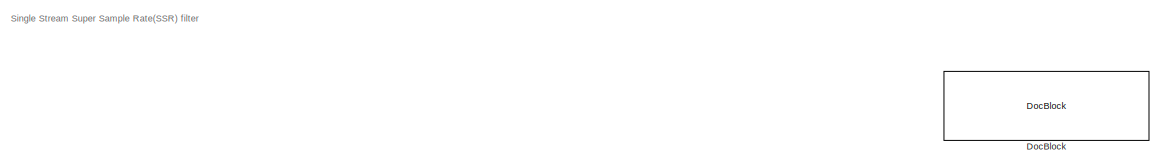
[diagram: root canvas - part 1/4, top center region]
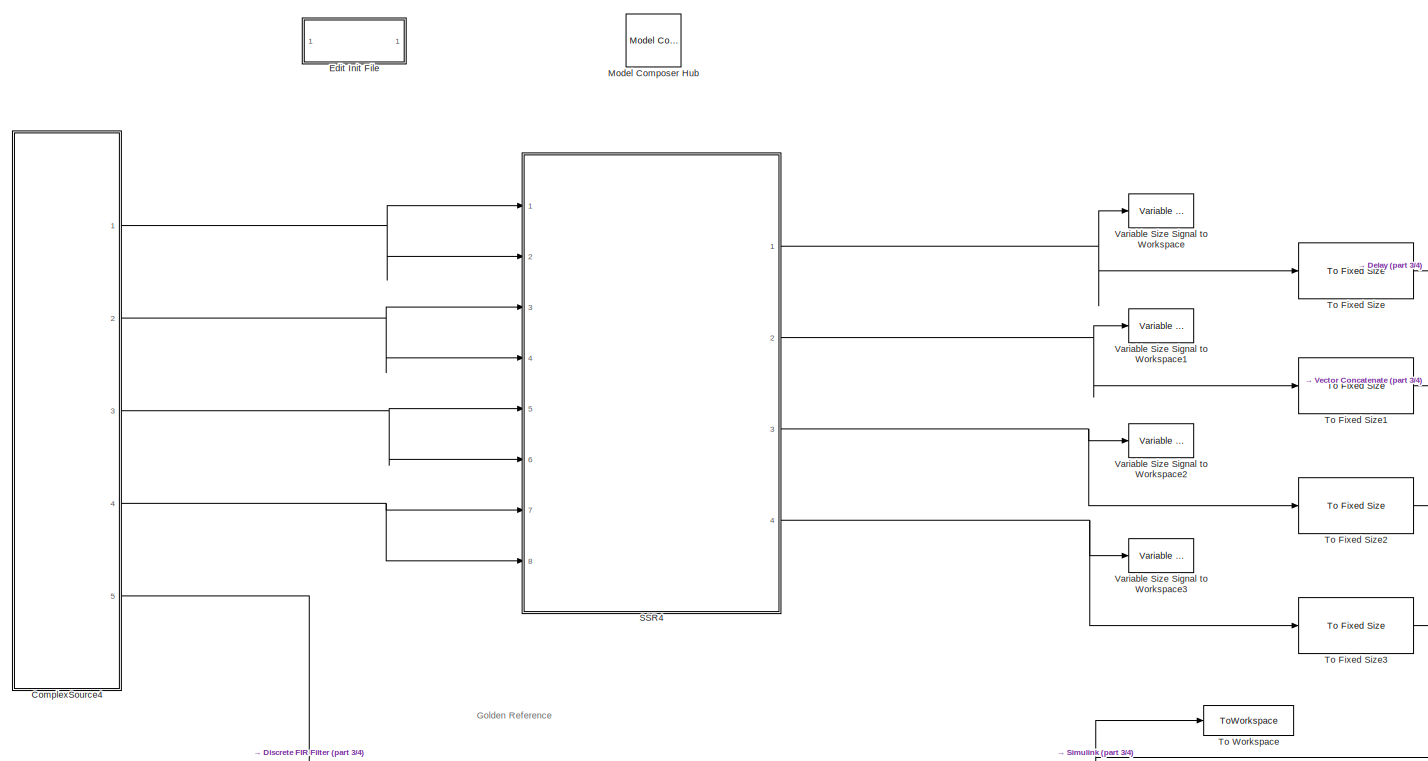
[diagram: root canvas - part 2/4, left side, full height]
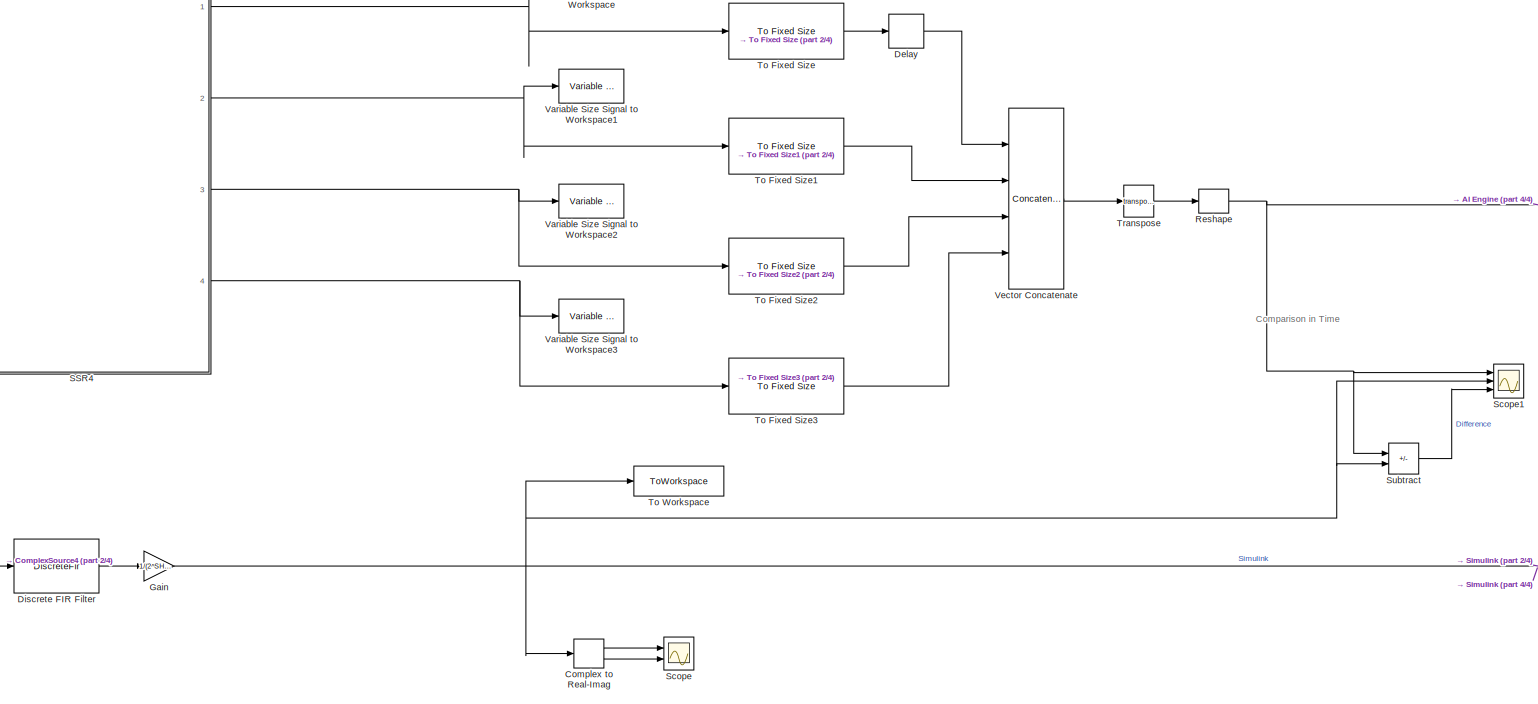
[diagram: root canvas - part 3/4, central region]
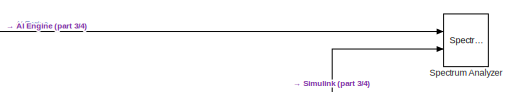
[diagram: root canvas - part 4/4, middle right region]
MODEL slx_d6a7dd6f2896
KIND model
CONFIG AbsTol = auto
CONFIG EnableMultiTasking = off
CONFIG FixedStep = auto
CONFIG InitFcn = xmcCheckSlxPath(bdroot)\nSSR4_init;\n\n
CONFIG MaxStep = auto
CONFIG MinStep = auto
CONFIG PreLoadFcn = xmcCheckSlxPath(bdroot)\nSSR4_init\n
CONFIG RelTol = 1e-3
CONFIG SampleTimeConstraint = Unconstrained
CONFIG Solver = VariableStepAuto
CONFIG SolverName = VariableStepAuto
CONFIG StartTime = 0.0
CONFIG StopTime = 4096
BLOCK [ComplexToRealImag] Complex to Real-Imag
  Ports = [1, 2]
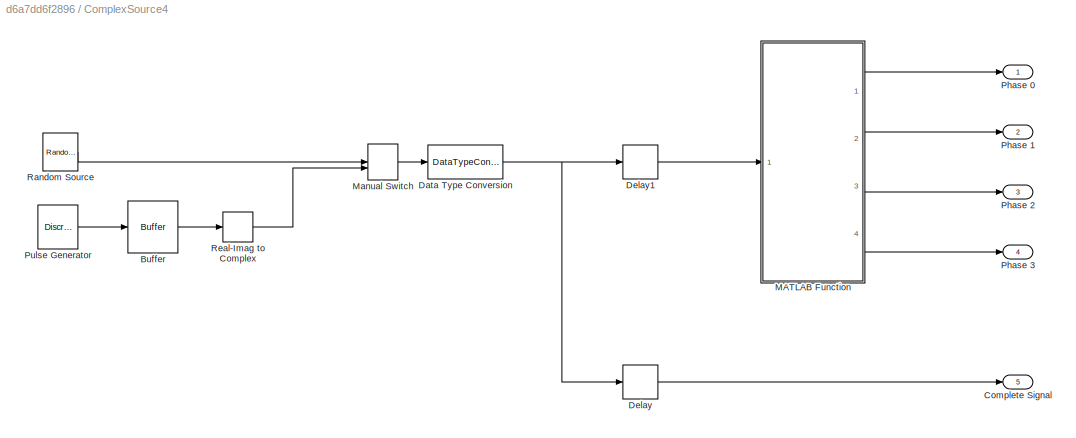
BLOCK [SubSystem] ComplexSource4
  Ports = [0, 5]
  RequestExecContextInheritance = off
BLOCK [Buffer] ComplexSource4/Buffer
  N = N*4
  OutputFrames = off
BLOCK [Outport] ComplexSource4/Complete Signal
  Port = 5
BLOCK [DataTypeConversion] ComplexSource4/Data Type Conversion
  OutDataTypeStr = int16
  RndMeth = Floor
  SaturateOnIntegerOverflow = off
BLOCK [Delay] ComplexSource4/Delay
  DelayLength = 13+N*4
  InputPortMap = u0
  InputProcessing = Columns as channels (frame based)
  Ports = [1, 1]
BLOCK [Delay] ComplexSource4/Delay1
  DelayLength = N*4
  InputPortMap = u0
  InputProcessing = Columns as channels (frame based)
  Ports = [1, 1]
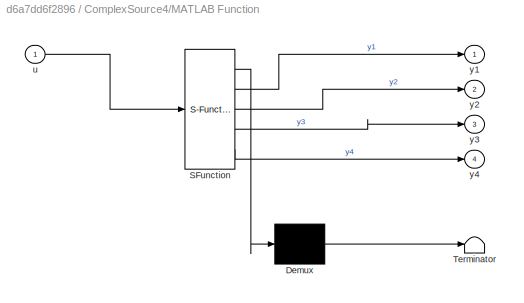
BLOCK [SubSystem] ComplexSource4/MATLAB Function
  ErrorFcn = Stateflow.Translate.translate
  PermitHierarchicalResolution = ExplicitOnly
  Ports = [1, 4]
  RequestExecContextInheritance = off
  SFBlockType = MATLAB Function
  TreatAsAtomicUnit = on
BLOCK [Demux] ComplexSource4/MATLAB Function/ Demux 
  Outputs = 1
  Ports = [1, 1]
BLOCK [S-Function] ComplexSource4/MATLAB Function/ SFunction 
  EnableBusSupport = on
  FunctionName = sf_sfun
  PortCounts = [1 5]
  Ports = [1, 5]
  SFcnIsStateOwnerBlock = off
  SFunctionDeploymentMode = off
  Tag = Stateflow S-Function 2
BLOCK [Terminator] ComplexSource4/MATLAB Function/ Terminator 
BLOCK [Inport] ComplexSource4/MATLAB Function/u
BLOCK [Outport] ComplexSource4/MATLAB Function/y1
BLOCK [Outport] ComplexSource4/MATLAB Function/y2
  Port = 2
BLOCK [Outport] ComplexSource4/MATLAB Function/y3
  Port = 3
BLOCK [Outport] ComplexSource4/MATLAB Function/y4
  Port = 4
BLOCK [ManualSwitch] ComplexSource4/Manual Switch
BLOCK [Outport] ComplexSource4/Phase 0
BLOCK [Outport] ComplexSource4/Phase 1
  Port = 2
BLOCK [Outport] ComplexSource4/Phase 2
  Port = 3
BLOCK [Outport] ComplexSource4/Phase 3
  Port = 4
BLOCK [DiscretePulseGenerator] ComplexSource4/Pulse Generator
  Amplitude = 20000
  Period = 32 + 40*5
  PhaseDelay = 32
  Ports = [0, 1]
  SampleTime = 1/8
BLOCK [Reference] ComplexSource4/Random Source  REF=dspsrcs4/Random
Source
  Ports = [0, 1]
  SourceBlock = dspsrcs4/Random\nSource
  SourceProductBaseCode = DS
  SourceType = Random Source
  UserDataPersistent = on
BLOCK [RealImagToComplex] ComplexSource4/Real-Imag to Complex
  Input = Real
  Ports = [1, 1]
BLOCK [Delay] Delay
  DelayLength = 4
  InputPortMap = u0
  InputProcessing = Columns as channels (frame based)
  Ports = [1, 1]
BLOCK [DiscreteFir] Discrete FIR Filter
  Coefficients = Taps
  InputPortMap = u0
  InputProcessing = Columns as channels (frame based)
  OutputPortMap = o0
  Ports = [1, 1]
BLOCK [Reference] DocBlock  REF=simulink/Model-Wide
Utilities/DocBlock
  Ports = []
  SourceBlock = simulink/Model-Wide\nUtilities/DocBlock
  SourceProductBaseCode = SL
  SourceType = DocBlock
  UserDataPersistent = on
BLOCK [SubSystem] Edit Init File
  OpenFcn = edit('SSR4_init.m');
  Ports = []
  RequestExecContextInheritance = off
BLOCK [Gain] Gain
  Gain = 1/(2^SHIFT_ACC)
BLOCK [Reference] Model Composer Hub  REF=ModelComposer/Model Composer Hub
  Ports = []
  SourceBlock = ModelComposer/Model Composer Hub
  SourceType = Implementation
BLOCK [Reshape] Reshape
  Ports = [1, 1]
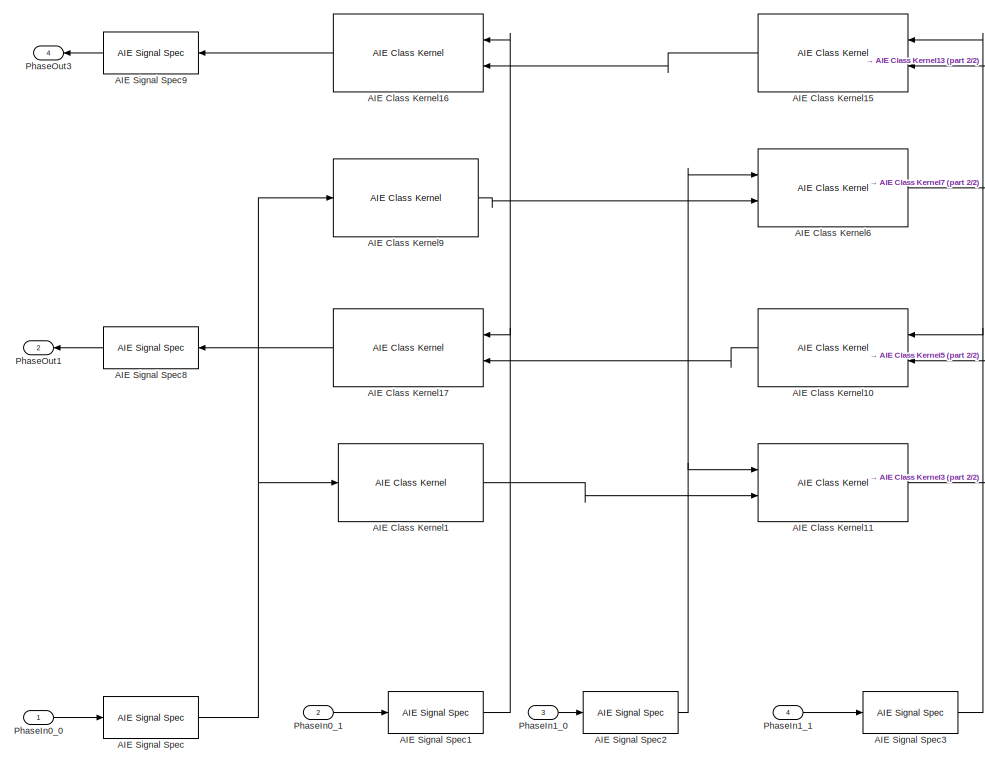
[diagram: SSR4 - part 1/2, left side, full height]
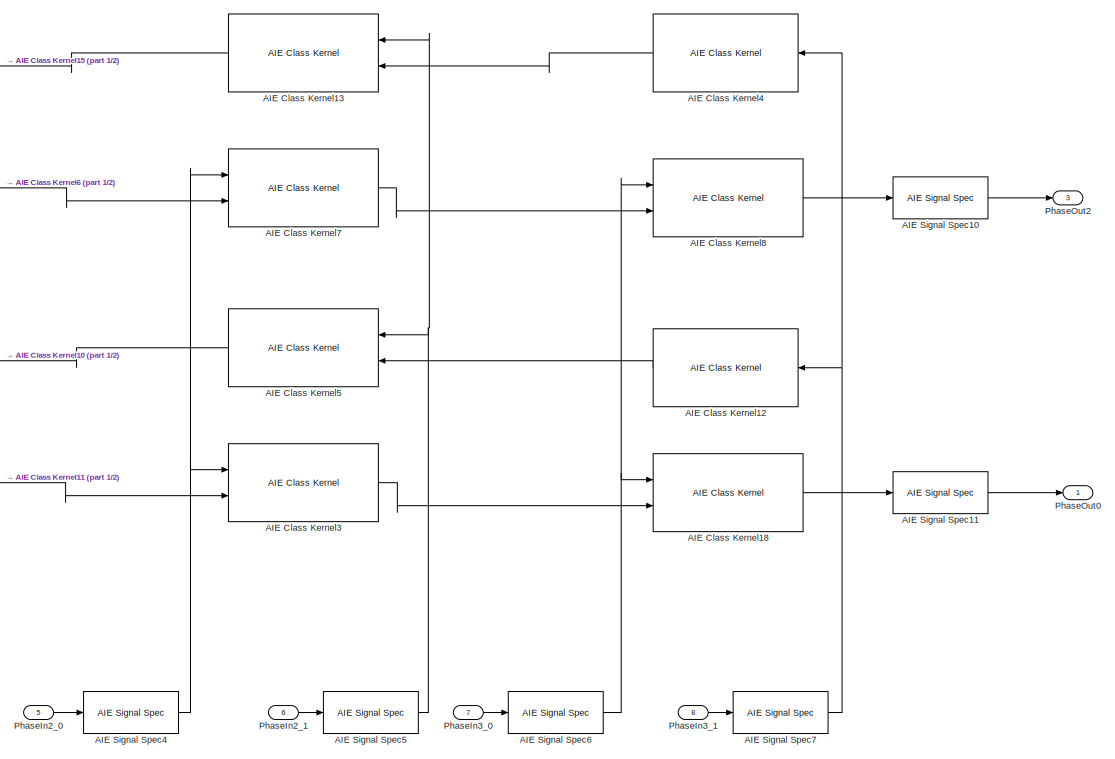
[diagram: SSR4 - part 2/2, right side, full height]
BLOCK [SubSystem] SSR4
  Ports = [8, 4]
  RequestExecContextInheritance = off
BLOCK [Reference] SSR4/AIE Class Kernel1  REF=ModelComposer/AIE Class Kernel
  Ports = [1, 1]
  SourceBlock = ModelComposer/AIE Class Kernel
  SourceType = AIE Class Kernel Function
BLOCK [Reference] SSR4/AIE Class Kernel10  REF=ModelComposer/AIE Class Kernel
  NameLocation = top
  Ports = [2, 1]
  SourceBlock = ModelComposer/AIE Class Kernel
  SourceType = AIE Class Kernel Function
BLOCK [Reference] SSR4/AIE Class Kernel11  REF=ModelComposer/AIE Class Kernel
  Ports = [2, 1]
  SourceBlock = ModelComposer/AIE Class Kernel
  SourceType = AIE Class Kernel Function
BLOCK [Reference] SSR4/AIE Class Kernel12  REF=ModelComposer/AIE Class Kernel
  NameLocation = top
  Ports = [1, 1]
  SourceBlock = ModelComposer/AIE Class Kernel
  SourceType = AIE Class Kernel Function
BLOCK [Reference] SSR4/AIE Class Kernel13  REF=ModelComposer/AIE Class Kernel
  NameLocation = top
  Ports = [2, 1]
  SourceBlock = ModelComposer/AIE Class Kernel
  SourceType = AIE Class Kernel Function
BLOCK [Reference] SSR4/AIE Class Kernel15  REF=ModelComposer/AIE Class Kernel
  NameLocation = top
  Ports = [2, 1]
  SourceBlock = ModelComposer/AIE Class Kernel
  SourceType = AIE Class Kernel Function
BLOCK [Reference] SSR4/AIE Class Kernel16  REF=ModelComposer/AIE Class Kernel
  NameLocation = top
  Ports = [2, 1]
  SourceBlock = ModelComposer/AIE Class Kernel
  SourceType = AIE Class Kernel Function
BLOCK [Reference] SSR4/AIE Class Kernel17  REF=ModelComposer/AIE Class Kernel
  NameLocation = top
  Ports = [2, 1]
  SourceBlock = ModelComposer/AIE Class Kernel
  SourceType = AIE Class Kernel Function
BLOCK [Reference] SSR4/AIE Class Kernel18  REF=ModelComposer/AIE Class Kernel
  Ports = [2, 1]
  SourceBlock = ModelComposer/AIE Class Kernel
  SourceType = AIE Class Kernel Function
BLOCK [Reference] SSR4/AIE Class Kernel3  REF=ModelComposer/AIE Class Kernel
  Ports = [2, 1]
  SourceBlock = ModelComposer/AIE Class Kernel
  SourceType = AIE Class Kernel Function
BLOCK [Reference] SSR4/AIE Class Kernel4  REF=ModelComposer/AIE Class Kernel
  NameLocation = top
  Ports = [1, 1]
  SourceBlock = ModelComposer/AIE Class Kernel
  SourceType = AIE Class Kernel Function
BLOCK [Reference] SSR4/AIE Class Kernel5  REF=ModelComposer/AIE Class Kernel
  NameLocation = top
  Ports = [2, 1]
  SourceBlock = ModelComposer/AIE Class Kernel
  SourceType = AIE Class Kernel Function
BLOCK [Reference] SSR4/AIE Class Kernel6  REF=ModelComposer/AIE Class Kernel
  Ports = [2, 1]
  SourceBlock = ModelComposer/AIE Class Kernel
  SourceType = AIE Class Kernel Function
BLOCK [Reference] SSR4/AIE Class Kernel7  REF=ModelComposer/AIE Class Kernel
  Ports = [2, 1]
  SourceBlock = ModelComposer/AIE Class Kernel
  SourceType = AIE Class Kernel Function
BLOCK [Reference] SSR4/AIE Class Kernel8  REF=ModelComposer/AIE Class Kernel
  Ports = [2, 1]
  SourceBlock = ModelComposer/AIE Class Kernel
  SourceType = AIE Class Kernel Function
BLOCK [Reference] SSR4/AIE Class Kernel9  REF=ModelComposer/AIE Class Kernel
  Ports = [1, 1]
  SourceBlock = ModelComposer/AIE Class Kernel
  SourceType = AIE Class Kernel Function
BLOCK [Reference] SSR4/AIE Signal Spec  REF=ModelComposer/AIE Signal Spec
  Ports = [1, 1]
  SourceBlock = ModelComposer/AIE Signal Spec
  SourceType = AIE Signal Spec
BLOCK [Reference] SSR4/AIE Signal Spec1  REF=ModelComposer/AIE Signal Spec
  Ports = [1, 1]
  SourceBlock = ModelComposer/AIE Signal Spec
  SourceType = AIE Signal Spec
BLOCK [Reference] SSR4/AIE Signal Spec10  REF=ModelComposer/AIE Signal Spec
  Ports = [1, 1]
  SourceBlock = ModelComposer/AIE Signal Spec
  SourceType = AIE Signal Spec
BLOCK [Reference] SSR4/AIE Signal Spec11  REF=ModelComposer/AIE Signal Spec
  Ports = [1, 1]
  SourceBlock = ModelComposer/AIE Signal Spec
  SourceType = AIE Signal Spec
BLOCK [Reference] SSR4/AIE Signal Spec2  REF=ModelComposer/AIE Signal Spec
  Ports = [1, 1]
  SourceBlock = ModelComposer/AIE Signal Spec
  SourceType = AIE Signal Spec
BLOCK [Reference] SSR4/AIE Signal Spec3  REF=ModelComposer/AIE Signal Spec
  Ports = [1, 1]
  SourceBlock = ModelComposer/AIE Signal Spec
  SourceType = AIE Signal Spec
BLOCK [Reference] SSR4/AIE Signal Spec4  REF=ModelComposer/AIE Signal Spec
  Ports = [1, 1]
  SourceBlock = ModelComposer/AIE Signal Spec
  SourceType = AIE Signal Spec
BLOCK [Reference] SSR4/AIE Signal Spec5  REF=ModelComposer/AIE Signal Spec
  Ports = [1, 1]
  SourceBlock = ModelComposer/AIE Signal Spec
  SourceType = AIE Signal Spec
BLOCK [Reference] SSR4/AIE Signal Spec6  REF=ModelComposer/AIE Signal Spec
  Ports = [1, 1]
  SourceBlock = ModelComposer/AIE Signal Spec
  SourceType = AIE Signal Spec
BLOCK [Reference] SSR4/AIE Signal Spec7  REF=ModelComposer/AIE Signal Spec
  Ports = [1, 1]
  SourceBlock = ModelComposer/AIE Signal Spec
  SourceType = AIE Signal Spec
BLOCK [Reference] SSR4/AIE Signal Spec8  REF=ModelComposer/AIE Signal Spec
  Ports = [1, 1]
  SourceBlock = ModelComposer/AIE Signal Spec
  SourceType = AIE Signal Spec
BLOCK [Reference] SSR4/AIE Signal Spec9  REF=ModelComposer/AIE Signal Spec
  Ports = [1, 1]
  SourceBlock = ModelComposer/AIE Signal Spec
  SourceType = AIE Signal Spec
BLOCK [Inport] SSR4/PhaseIn0_0
BLOCK [Inport] SSR4/PhaseIn0_1
  Port = 2
BLOCK [Inport] SSR4/PhaseIn1_0
  Port = 3
BLOCK [Inport] SSR4/PhaseIn1_1
  Port = 4
BLOCK [Inport] SSR4/PhaseIn2_0
  Port = 5
BLOCK [Inport] SSR4/PhaseIn2_1
  Port = 6
BLOCK [Inport] SSR4/PhaseIn3_0
  Port = 7
BLOCK [Inport] SSR4/PhaseIn3_1
  Port = 8
BLOCK [Outport] SSR4/PhaseOut0
BLOCK [Outport] SSR4/PhaseOut1
  NameLocation = top
  Port = 2
BLOCK [Outport] SSR4/PhaseOut2
  Port = 3
BLOCK [Outport] SSR4/PhaseOut3
  NameLocation = top
  Port = 4
BLOCK [Scope] Scope
  Floating = off
  NumInputPorts = 2
  Ports = [2]
  ScopeSpecificationString = Simulink.scopes.TimeScopeBlockCfg('CurrentConfiguration', extmgr.ConfigurationSet(extmgr.Configuration('Core','General UI',true),extmgr.Configuration('Core','Source UI',true),extmgr.Configuration('Sources','WiredSimulink',true,'DataLoggingVariableName','ScopeData1'),extmgr.Configuration('Visuals','Time Domain',true,'SerializedDisplays',{struct('MinYLimReal','-6066.86406','MaxYLimReal','9029.23385'...<+2161ch>
BLOCK [Scope] Scope1
  Floating = off
  NumInputPorts = 3
  Ports = [3]
  ScopeSpecificationString = Simulink.scopes.TimeScopeBlockCfg('CurrentConfiguration', extmgr.ConfigurationSet(extmgr.Configuration('Core','General UI',true),extmgr.Configuration('Core','Source UI',true),extmgr.Configuration('Sources','WiredSimulink',true,'DataLoggingVariableName','ScopeData2'),extmgr.Configuration('Visuals','Time Domain',true,'InputProcessing','FrameProcessing','SerializedDisplays',{struct('MinYLimReal','-26...<+2897ch>
BLOCK [SpectrumAnalyzer] Spectrum Analyzer
  NumInputPorts = 2
  Ports = [2]
  ScopeSpecificationString = spbscopes.SpectrumAnalyzerBlockCfg('CurrentConfiguration', extmgr.ConfigurationSet(extmgr.Configuration('Core','General UI',true),extmgr.Configuration('Core','Source UI',true),extmgr.Configuration('Sources','WiredSimulink',true),extmgr.Configuration('Sources','Simulink',false),extmgr.Configuration('Sources','SimulinkEvent',false),extmgr.Configuration('Sources','File',false),extmgr.Configuration('S...<+2890ch>
BLOCK [Sum] Subtract
  IconShape = rectangular
  Inputs = +-
  Ports = [2, 1]
BLOCK [Reference] To Fixed Size  REF=ModelComposer/To Fixed Size
  Ports = [1, 1]
  SourceBlock = ModelComposer/To Fixed Size
  SourceType = To Fixed Size
BLOCK [Reference] To Fixed Size1  REF=ModelComposer/To Fixed Size
  Ports = [1, 1]
  SourceBlock = ModelComposer/To Fixed Size
  SourceType = To Fixed Size
BLOCK [Reference] To Fixed Size2  REF=ModelComposer/To Fixed Size
  Ports = [1, 1]
  SourceBlock = ModelComposer/To Fixed Size
  SourceType = To Fixed Size
BLOCK [Reference] To Fixed Size3  REF=ModelComposer/To Fixed Size
  Ports = [1, 1]
  SourceBlock = ModelComposer/To Fixed Size
  SourceType = To Fixed Size
BLOCK [ToWorkspace] To Workspace
  FixptAsFi = on
  MaxDataPoints = inf
  Ports = [1]
  SampleTime = -1
  Save2DSignal = 2-D array (concatenate along first dimension)
  VariableName = Ref
BLOCK [Math] Transpose
  Operator = transpose
  Ports = [1, 1]
BLOCK [Reference] Variable Size Signal to Workspace  REF=ModelComposer/Variable Size Signal to Workspace
  Ports = [1]
  SourceBlock = ModelComposer/Variable Size Signal to Workspace
  SourceType = Variable Size Signal to Workspace
BLOCK [Reference] Variable Size Signal to Workspace1  REF=ModelComposer/Variable Size Signal to Workspace
  Ports = [1]
  SourceBlock = ModelComposer/Variable Size Signal to Workspace
  SourceType = Variable Size Signal to Workspace
BLOCK [Reference] Variable Size Signal to Workspace2  REF=ModelComposer/Variable Size Signal to Workspace
  Ports = [1]
  SourceBlock = ModelComposer/Variable Size Signal to Workspace
  SourceType = Variable Size Signal to Workspace
BLOCK [Reference] Variable Size Signal to Workspace3  REF=ModelComposer/Variable Size Signal to Workspace
  Ports = [1]
  SourceBlock = ModelComposer/Variable Size Signal to Workspace
  SourceType = Variable Size Signal to Workspace
BLOCK [Concatenate] Vector Concatenate
  ConcatenateDimension = 2
  Mode = Multidimensional array
  NumInputs = 4
  Ports = [4, 1]
ANNOTATION (root): Single Stream Super Sample Rate(SSR) filter
ANNOTATION (root): Comparison in Time
ANNOTATION (root): Golden Reference
LINE Complex to Real-Imag:1 -> Scope:1
LINE Complex to Real-Imag:2 -> Scope:2
LINE ComplexSource4/Buffer:1 -> ComplexSource4/Real-Imag to Complex:1
NET ComplexSource4/Data Type Conversion:1 -> ComplexSource4/Delay1:1, ComplexSource4/Delay:1
LINE ComplexSource4/Delay1:1 -> ComplexSource4/MATLAB Function:1
LINE ComplexSource4/Delay:1 -> ComplexSource4/Complete Signal:1
LINE ComplexSource4/MATLAB Function:1 -> ComplexSource4/Phase 0:1
LINE ComplexSource4/MATLAB Function:2 -> ComplexSource4/Phase 1:1
LINE ComplexSource4/MATLAB Function:3 -> ComplexSource4/Phase 2:1
LINE ComplexSource4/MATLAB Function:4 -> ComplexSource4/Phase 3:1
LINE ComplexSource4/Manual Switch:1 -> ComplexSource4/Data Type Conversion:1
LINE ComplexSource4/Pulse Generator:1 -> ComplexSource4/Buffer:1
LINE ComplexSource4/Random Source:1 -> ComplexSource4/Manual Switch:1
LINE ComplexSource4/Real-Imag to Complex:1 -> ComplexSource4/Manual Switch:2
NET ComplexSource4:1 -> SSR4:1, SSR4:2
NET ComplexSource4:2 -> SSR4:3, SSR4:4
NET ComplexSource4:3 -> SSR4:5, SSR4:6
NET ComplexSource4:4 -> SSR4:7, SSR4:8
LINE ComplexSource4:5 -> Discrete FIR Filter:1
LINE Delay:1 -> Vector Concatenate:1
LINE Discrete FIR Filter:1 -> Gain:1
NET Gain:1 -> Complex to Real-Imag:1, Scope1:2, Spectrum Analyzer:2, Subtract:2, To Workspace:1
NET Reshape:1 -> Scope1:1, Spectrum Analyzer:1, Subtract:1
LINE SSR4/AIE Class Kernel10:1 -> SSR4/AIE Class Kernel17:2
LINE SSR4/AIE Class Kernel11:1 -> SSR4/AIE Class Kernel3:2
LINE SSR4/AIE Class Kernel12:1 -> SSR4/AIE Class Kernel5:2
LINE SSR4/AIE Class Kernel13:1 -> SSR4/AIE Class Kernel15:2
LINE SSR4/AIE Class Kernel15:1 -> SSR4/AIE Class Kernel16:2
LINE SSR4/AIE Class Kernel16:1 -> SSR4/AIE Signal Spec9:1
LINE SSR4/AIE Class Kernel17:1 -> SSR4/AIE Signal Spec8:1
LINE SSR4/AIE Class Kernel18:1 -> SSR4/AIE Signal Spec11:1
LINE SSR4/AIE Class Kernel1:1 -> SSR4/AIE Class Kernel11:2
LINE SSR4/AIE Class Kernel3:1 -> SSR4/AIE Class Kernel18:2
LINE SSR4/AIE Class Kernel4:1 -> SSR4/AIE Class Kernel13:2
LINE SSR4/AIE Class Kernel5:1 -> SSR4/AIE Class Kernel10:2
LINE SSR4/AIE Class Kernel6:1 -> SSR4/AIE Class Kernel7:2
LINE SSR4/AIE Class Kernel7:1 -> SSR4/AIE Class Kernel8:2
LINE SSR4/AIE Class Kernel8:1 -> SSR4/AIE Signal Spec10:1
LINE SSR4/AIE Class Kernel9:1 -> SSR4/AIE Class Kernel6:2
LINE SSR4/AIE Signal Spec10:1 -> SSR4/PhaseOut2:1
LINE SSR4/AIE Signal Spec11:1 -> SSR4/PhaseOut0:1
NET SSR4/AIE Signal Spec1:1 -> SSR4/AIE Class Kernel16:1, SSR4/AIE Class Kernel17:1
NET SSR4/AIE Signal Spec2:1 -> SSR4/AIE Class Kernel11:1, SSR4/AIE Class Kernel6:1
NET SSR4/AIE Signal Spec3:1 -> SSR4/AIE Class Kernel10:1, SSR4/AIE Class Kernel15:1
NET SSR4/AIE Signal Spec4:1 -> SSR4/AIE Class Kernel3:1, SSR4/AIE Class Kernel7:1
NET SSR4/AIE Signal Spec5:1 -> SSR4/AIE Class Kernel13:1, SSR4/AIE Class Kernel5:1
NET SSR4/AIE Signal Spec6:1 -> SSR4/AIE Class Kernel18:1, SSR4/AIE Class Kernel8:1
NET SSR4/AIE Signal Spec7:1 -> SSR4/AIE Class Kernel12:1, SSR4/AIE Class Kernel4:1
LINE SSR4/AIE Signal Spec8:1 -> SSR4/PhaseOut1:1
LINE SSR4/AIE Signal Spec9:1 -> SSR4/PhaseOut3:1
NET SSR4/AIE Signal Spec:1 -> SSR4/AIE Class Kernel1:1, SSR4/AIE Class Kernel9:1
LINE SSR4/PhaseIn0_0:1 -> SSR4/AIE Signal Spec:1
LINE SSR4/PhaseIn0_1:1 -> SSR4/AIE Signal Spec1:1
LINE SSR4/PhaseIn1_0:1 -> SSR4/AIE Signal Spec2:1
LINE SSR4/PhaseIn1_1:1 -> SSR4/AIE Signal Spec3:1
LINE SSR4/PhaseIn2_0:1 -> SSR4/AIE Signal Spec4:1
LINE SSR4/PhaseIn2_1:1 -> SSR4/AIE Signal Spec5:1
LINE SSR4/PhaseIn3_0:1 -> SSR4/AIE Signal Spec6:1
LINE SSR4/PhaseIn3_1:1 -> SSR4/AIE Signal Spec7:1
NET SSR4:1 -> To Fixed Size:1, Variable Size Signal to Workspace:1
NET SSR4:2 -> To Fixed Size1:1, Variable Size Signal to Workspace1:1
NET SSR4:3 -> To Fixed Size2:1, Variable Size Signal to Workspace2:1
NET SSR4:4 -> To Fixed Size3:1, Variable Size Signal to Workspace3:1
LINE Subtract:1 -> Scope1:3
LINE To Fixed Size1:1 -> Vector Concatenate:2
LINE To Fixed Size2:1 -> Vector Concatenate:3
LINE To Fixed Size3:1 -> Vector Concatenate:4
LINE To Fixed Size:1 -> Delay:1
LINE Transpose:1 -> Reshape:1
LINE Vector Concatenate:1 -> Transpose:1
note: NET lines group one-source signal fan-out (src -> all destinations, sorted); 1:1 wires keep LINE
CHART ComplexSource4/MATLAB Function states=1 transitions=1
  STATE_LABEL 'eML_blk_kernel()'
  STATE_LABEL 'SCRIPT:\nfunction [y1,y2,y3,y4] = fcn(u)\n\ny1 = u(1:4:end);\ny2 = u(2:4:end);\ny3 = u(3:4:end);\ny4 = u(4:4:end);\n'
CHART  states=0 transitions=0
